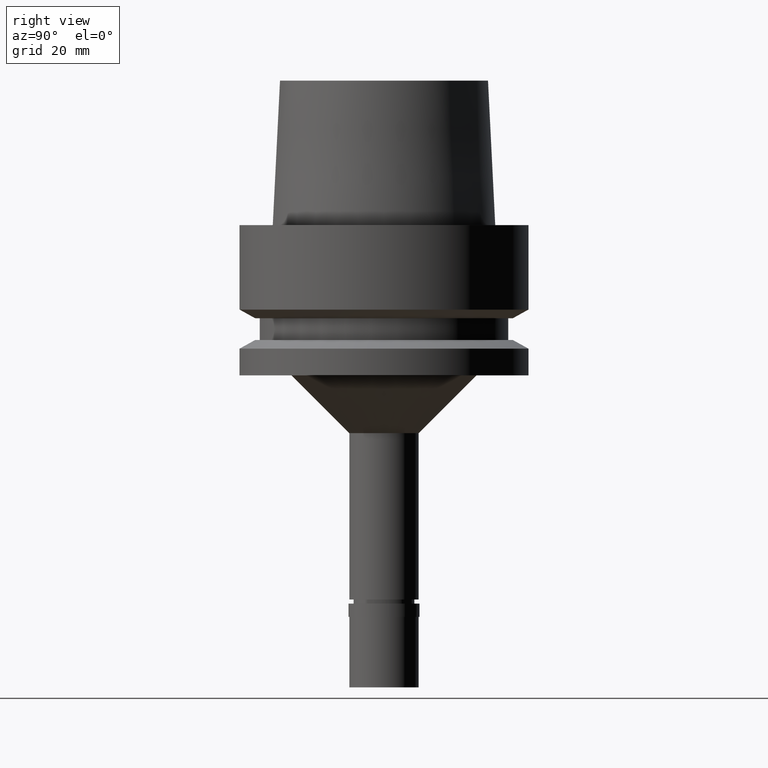
[diagram: clean part render]
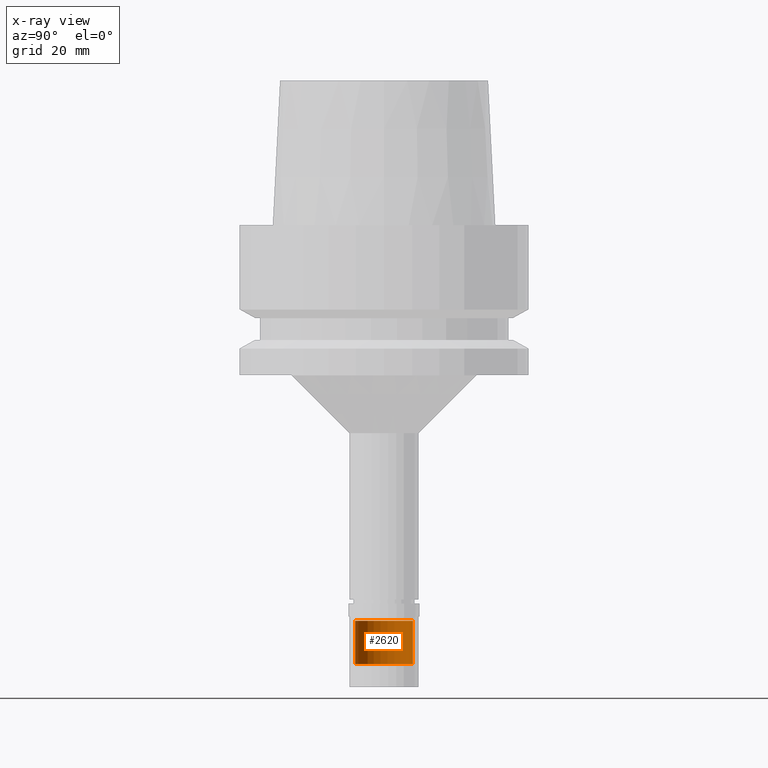
[diagram: x-ray — body ghosted, one internal face saturated and labeled with its STEP entity id]
A machine part, right view, then the same camera in x-ray: the body is ghosted and one INTERNAL B-rep face — a face not visible from any outside direction — is saturated and labeled: STEP entity #2620.
In plain terms, the highlighted cylindrical surface (edge-blend (fillet) strip) has radius 5 mm, axis along (0, 0, 1).
Its self-contained STEP definition (entity closure, byte-faithful):
#91 = CARTESIAN_POINT ( 'NONE',  ( 0.0000000000000000000, 5.000000000000000000, -68.50000000000000000 ) ) ;
#101 = FACE_OUTER_BOUND ( 'NONE', #1833, .T. ) ;
#124 = DIRECTION ( 'NONE',  ( 0.0000000000000000000, 0.0000000000000000000, 1.000000000000000000 ) ) ;
#392 = CIRCLE ( 'NONE', #1487, 5.000000000000000000 ) ;
#394 = LINE ( 'NONE', #406, #1360 ) ;
#406 = CARTESIAN_POINT ( 'NONE',  ( 0.0000000000000000000, -5.000000000000000000, -68.50000000000000000 ) ) ;
#517 = CIRCLE ( 'NONE', #2105, 5.000000000000000000 ) ;
#612 = CARTESIAN_POINT ( 'NONE',  ( 0.0000000000000000000, 0.0000000000000000000, -68.50000000000000000 ) ) ;
#636 = DIRECTION ( 'NONE',  ( 0.0000000000000000000, 0.0000000000000000000, -1.000000000000000000 ) ) ;
#659 = EDGE_CURVE ( 'NONE', #2695, #1513, #392, .T. ) ;
#760 = EDGE_CURVE ( 'NONE', #1513, #904, #1534, .T. ) ;
#833 = CARTESIAN_POINT ( 'NONE',  ( 0.0000000000000000000, -5.000000000000000000, -68.50000000000000000 ) ) ;
#869 = VECTOR ( 'NONE', #1549, 1000.000000000000000 ) ;
#904 = VERTEX_POINT ( 'NONE', #1829 ) ;
#1037 = EDGE_CURVE ( 'NONE', #2695, #1856, #394, .T. ) ;
#1130 = ORIENTED_EDGE ( 'NONE', *, *, #1446, .T. ) ;
#1132 = DIRECTION ( 'NONE',  ( 0.0000000000000000000, 1.000000000000000000, 0.0000000000000000000 ) ) ;
#1144 = CARTESIAN_POINT ( 'NONE',  ( 0.0000000000000000000, 5.000000000000000000, -68.50000000000000000 ) ) ;
#1248 = ORIENTED_EDGE ( 'NONE', *, *, #1037, .F. ) ;
#1281 = DIRECTION ( 'NONE',  ( 0.0000000000000000000, 0.0000000000000000000, -1.000000000000000000 ) ) ;
#1299 = ORIENTED_EDGE ( 'NONE', *, *, #760, .T. ) ;
#1338 = CARTESIAN_POINT ( 'NONE',  ( 0.0000000000000000000, 0.0000000000000000000, -76.00000000000000000 ) ) ;
#1360 = VECTOR ( 'NONE', #636, 1000.000000000000000 ) ;
#1446 = EDGE_CURVE ( 'NONE', #904, #1856, #517, .T. ) ;
#1480 = DIRECTION ( 'NONE',  ( 0.0000000000000000000, -1.000000000000000000, 0.0000000000000000000 ) ) ;
#1487 = AXIS2_PLACEMENT_3D ( 'NONE', #612, #1281, #1480 ) ;
#1513 = VERTEX_POINT ( 'NONE', #1144 ) ;
#1534 = LINE ( 'NONE', #91, #869 ) ;
#1549 = DIRECTION ( 'NONE',  ( 0.0000000000000000000, 0.0000000000000000000, -1.000000000000000000 ) ) ;
#1571 = DIRECTION ( 'NONE',  ( 0.0000000000000000000, 1.000000000000000000, 0.0000000000000000000 ) ) ;
#1773 = CYLINDRICAL_SURFACE ( 'NONE', #1853, 5.000000000000000000 ) ;
#1805 = ORIENTED_EDGE ( 'NONE', *, *, #659, .T. ) ;
#1829 = CARTESIAN_POINT ( 'NONE',  ( 0.0000000000000000000, 5.000000000000000000, -76.00000000000000000 ) ) ;
#1833 = EDGE_LOOP ( 'NONE', ( #1130, #1248, #1805, #1299 ) ) ;
#1853 = AXIS2_PLACEMENT_3D ( 'NONE', #2602, #124, #1571 ) ;
#1856 = VERTEX_POINT ( 'NONE', #2174 ) ;
#1946 = DIRECTION ( 'NONE',  ( 0.0000000000000000000, 0.0000000000000000000, 1.000000000000000000 ) ) ;
#2105 = AXIS2_PLACEMENT_3D ( 'NONE', #1338, #1946, #1132 ) ;
#2174 = CARTESIAN_POINT ( 'NONE',  ( 0.0000000000000000000, -5.000000000000000000, -76.00000000000000000 ) ) ;
#2602 = CARTESIAN_POINT ( 'NONE',  ( 0.0000000000000000000, 0.0000000000000000000, -81.04999999999999716 ) ) ;
#2620 = ADVANCED_FACE ( 'NONE', ( #101 ), #1773, .T. ) ;
#2695 = VERTEX_POINT ( 'NONE', #833 ) ;